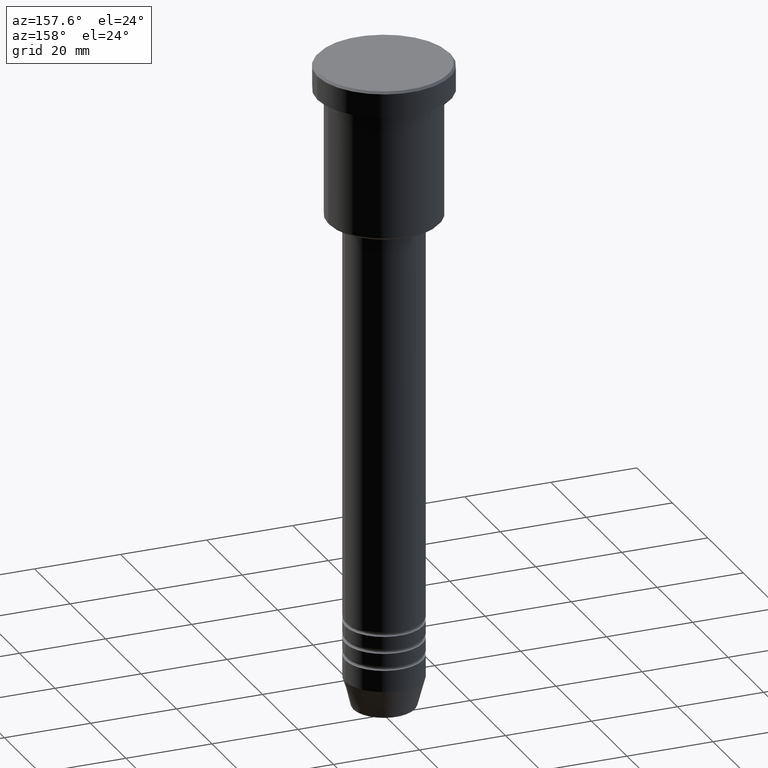
[diagram: clean part render]
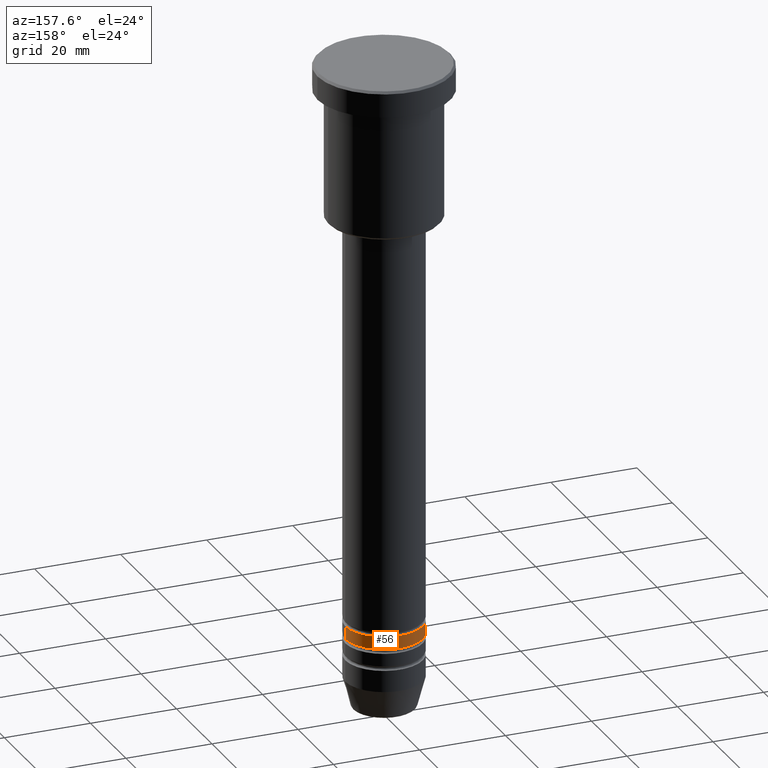
[diagram: same view with one face highlighted and labeled with its STEP entity id]
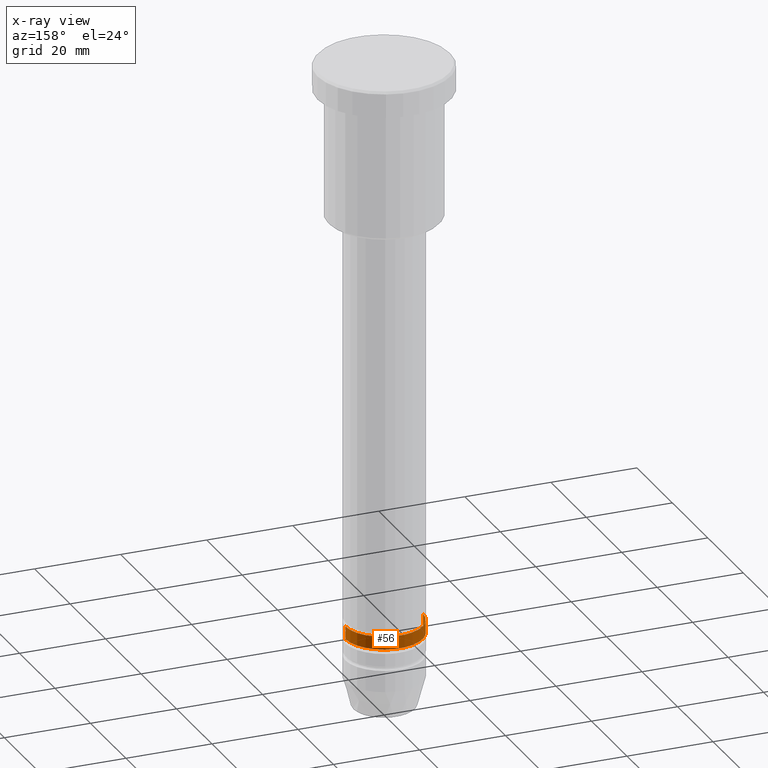
[diagram: x-ray of the same camera — body ghosted, the highlighted face saturated]
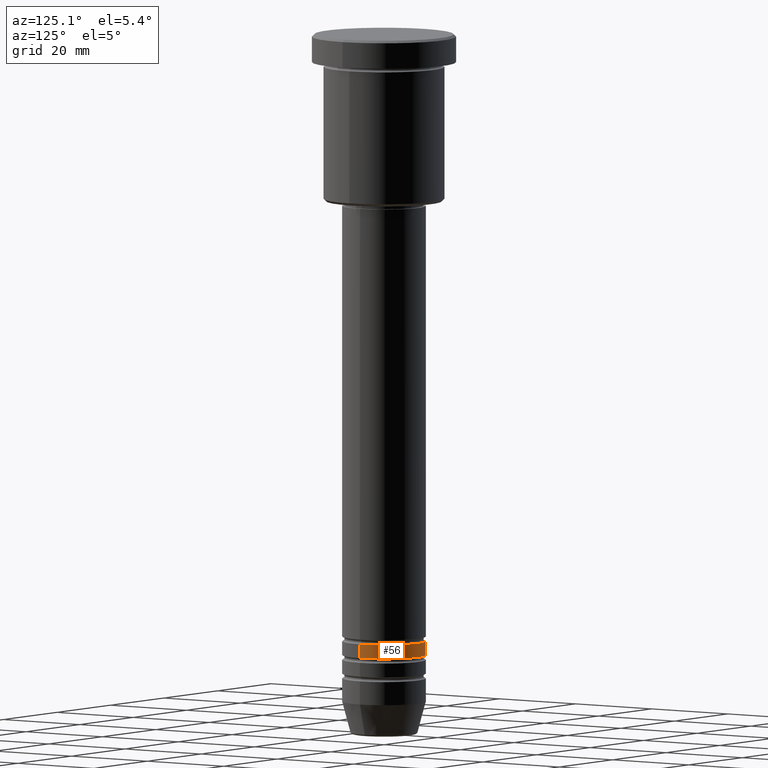
[diagram: same view with one face highlighted and labeled with its STEP entity id]
A machine part, auxiliary view. The second image highlights one B-rep face of the part: STEP entity #56.
The next image is the same camera in x-ray: the body ghosted, the highlighted face saturated — about 0% of this face is hidden behind the body in this view.
A second angle (auxiliary view) of the same face is appended — the face is thin or edge-on in the first view.
In plain terms, the highlighted cylindrical surface (partial cylindrical patch) has radius 9 mm, axis along (-0, -0, 1).
Its self-contained STEP definition (entity closure, byte-faithful):
#8 = VERTEX_POINT ( 'NONE', #669 ) ;
#22 = ORIENTED_EDGE ( 'NONE', *, *, #493, .T. ) ;
#42 = ORIENTED_EDGE ( 'NONE', *, *, #1087, .F. ) ;
#45 = DIRECTION ( 'NONE',  ( -0.000000000000000000, -0.000000000000000000, 1.000000000000000000 ) ) ;
#56 = ADVANCED_FACE ( 'NONE', ( #231 ), #875, .T. ) ;
#62 = VECTOR ( 'NONE', #455, 1000.000000000000000 ) ;
#98 = CIRCLE ( 'NONE', #768, 9.000000000000001776 ) ;
#231 = FACE_OUTER_BOUND ( 'NONE', #612, .T. ) ;
#323 = CARTESIAN_POINT ( 'NONE',  ( 0.000000000000000000, 0.000000000000000000, 0.000000000000000000 ) ) ;
#367 = ORIENTED_EDGE ( 'NONE', *, *, #668, .F. ) ;
#385 = ORIENTED_EDGE ( 'NONE', *, *, #654, .T. ) ;
#397 = CARTESIAN_POINT ( 'NONE',  ( 9.000000000000001776, 0.000000000000000000, -133.9999999999999147 ) ) ;
#433 = CARTESIAN_POINT ( 'NONE',  ( 0.000000000000000000, 0.000000000000000000, -133.9999999999999147 ) ) ;
#452 = CARTESIAN_POINT ( 'NONE',  ( 9.000000000000001776, 0.000000000000000000, 0.000000000000000000 ) ) ;
#455 = DIRECTION ( 'NONE',  ( -0.000000000000000000, -0.000000000000000000, 1.000000000000000000 ) ) ;
#493 = EDGE_CURVE ( 'NONE', #620, #851, #98, .T. ) ;
#498 = VERTEX_POINT ( 'NONE', #501 ) ;
#501 = CARTESIAN_POINT ( 'NONE',  ( 9.000000000000000000, 0.000000000000000000, -130.9999999999998863 ) ) ;
#537 = DIRECTION ( 'NONE',  ( 1.000000000000000000, 0.000000000000000000, 0.000000000000000000 ) ) ;
#543 = AXIS2_PLACEMENT_3D ( 'NONE', #323, #45, #781 ) ;
#551 = CARTESIAN_POINT ( 'NONE',  ( -9.000000000000001776, 1.102182119232617911E-15, 0.000000000000000000 ) ) ;
#556 = CARTESIAN_POINT ( 'NONE',  ( 0.000000000000000000, 0.000000000000000000, -130.9999999999998863 ) ) ;
#567 = VECTOR ( 'NONE', #899, 1000.000000000000000 ) ;
#612 = EDGE_LOOP ( 'NONE', ( #22, #385, #367, #42 ) ) ;
#620 = VERTEX_POINT ( 'NONE', #397 ) ;
#654 = EDGE_CURVE ( 'NONE', #851, #8, #889, .T. ) ;
#668 = EDGE_CURVE ( 'NONE', #498, #8, #697, .T. ) ;
#669 = CARTESIAN_POINT ( 'NONE',  ( -9.000000000000000000, 1.102182119232617714E-15, -130.9999999999998863 ) ) ;
#697 = CIRCLE ( 'NONE', #1062, 9.000000000000000000 ) ;
#761 = CARTESIAN_POINT ( 'NONE',  ( -9.000000000000001776, 1.102182119232617911E-15, -133.9999999999999147 ) ) ;
#768 = AXIS2_PLACEMENT_3D ( 'NONE', #433, #944, #850 ) ;
#781 = DIRECTION ( 'NONE',  ( 1.000000000000000000, 0.000000000000000000, 0.000000000000000000 ) ) ;
#850 = DIRECTION ( 'NONE',  ( 1.000000000000000000, 0.000000000000000000, 0.000000000000000000 ) ) ;
#851 = VERTEX_POINT ( 'NONE', #761 ) ;
#875 = CYLINDRICAL_SURFACE ( 'NONE', #543, 9.000000000000001776 ) ;
#889 = LINE ( 'NONE', #551, #62 ) ;
#899 = DIRECTION ( 'NONE',  ( -0.000000000000000000, -0.000000000000000000, 1.000000000000000000 ) ) ;
#944 = DIRECTION ( 'NONE',  ( -0.000000000000000000, -0.000000000000000000, 1.000000000000000000 ) ) ;
#990 = DIRECTION ( 'NONE',  ( -0.000000000000000000, -0.000000000000000000, 1.000000000000000000 ) ) ;
#1062 = AXIS2_PLACEMENT_3D ( 'NONE', #556, #990, #537 ) ;
#1084 = LINE ( 'NONE', #452, #567 ) ;
#1087 = EDGE_CURVE ( 'NONE', #620, #498, #1084, .T. ) ;